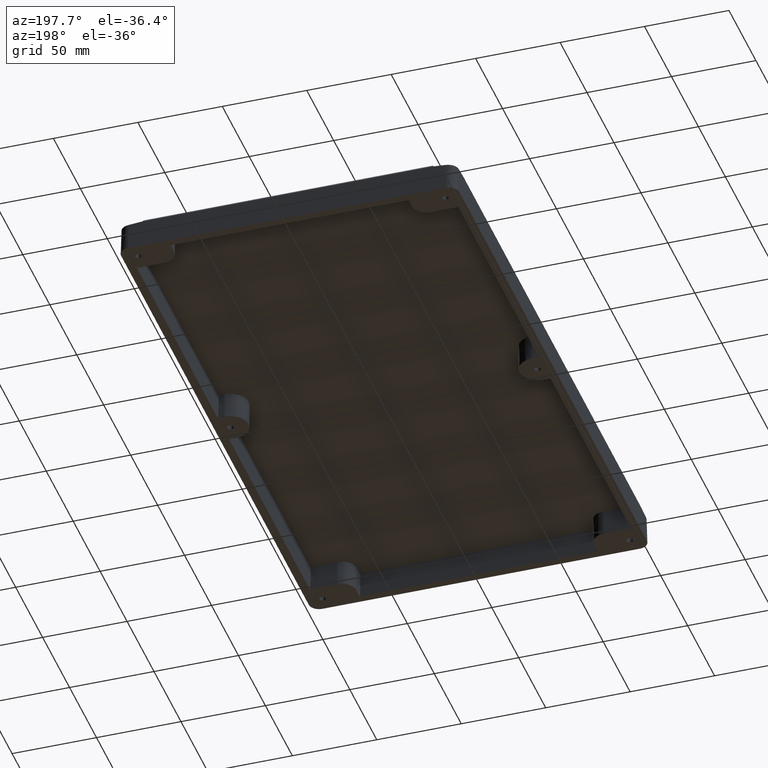
[diagram: clean part render]
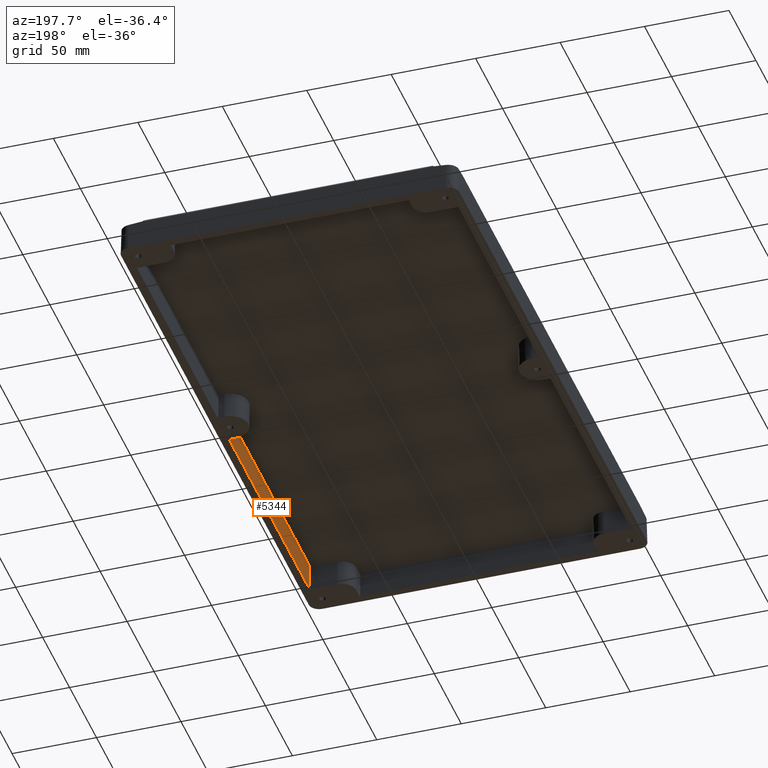
[diagram: same view with one face highlighted and labeled with its STEP entity id]
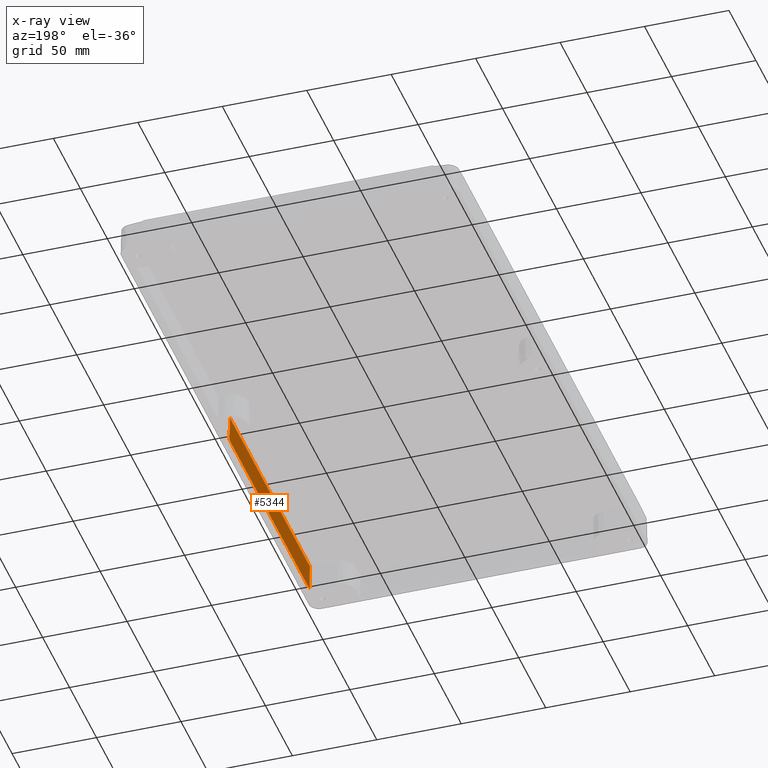
[diagram: x-ray of the same camera — body ghosted, the highlighted face saturated]
A machine part, auxiliary view. The second image highlights one B-rep face of the part: STEP entity #5344.
The next image is the same camera in x-ray: the body ghosted, the highlighted face saturated — about 0% of this face is hidden behind the body in this view.
In plain terms, the highlighted planar face has unit normal (0.9998, -0, 0.0175).
Its self-contained STEP definition (entity closure, byte-faithful):
#345 = VERTEX_POINT ( 'NONE', #6217 ) ;
#606 = CARTESIAN_POINT ( 'NONE',  ( 95.10508987014355900, -11.20483397743463900, 0.0000000000000000000 ) ) ;
#905 = LINE ( 'NONE', #1540, #4964 ) ;
#1021 = VECTOR ( 'NONE', #1147, 1000.000000000000200 ) ;
#1105 = EDGE_CURVE ( 'NONE', #345, #5139, #3326, .T. ) ;
#1147 = DIRECTION ( 'NONE',  ( -0.01744974916068272100, 0.01744974916068272500, 0.9996954598818874600 ) ) ;
#1229 = AXIS2_PLACEMENT_3D ( 'NONE', #3247, #4872, #1679 ) ;
#1540 = CARTESIAN_POINT ( 'NONE',  ( 95.10524209382850800, -11.20468175374969100, -0.008720889070033087700 ) ) ;
#1679 = DIRECTION ( 'NONE',  ( 0.01745240643728354600, 0.0000000000000000000, -0.9998476951563911600 ) ) ;
#1855 = EDGE_CURVE ( 'NONE', #5139, #2576, #4152, .T. ) ;
#2084 = DIRECTION ( 'NONE',  ( 0.01744974916068272100, 0.01744974916068271800, -0.9996954598818874600 ) ) ;
#2341 = ORIENTED_EDGE ( 'NONE', *, *, #1105, .T. ) ;
#2576 = VERTEX_POINT ( 'NONE', #2695 ) ;
#2630 = ORIENTED_EDGE ( 'NONE', *, *, #4691, .F. ) ;
#2695 = CARTESIAN_POINT ( 'NONE',  ( 94.83453636375617200, -11.47538748382201300, 15.50000000000000200 ) ) ;
#2731 = ORIENTED_EDGE ( 'NONE', *, *, #4204, .T. ) ;
#3097 = EDGE_LOOP ( 'NONE', ( #5246, #2731, #2630, #2341 ) ) ;
#3238 = CARTESIAN_POINT ( 'NONE',  ( 94.83468858744112100, -159.6247647398629100, 15.49127911092997100 ) ) ;
#3247 = CARTESIAN_POINT ( 'NONE',  ( 95.13999999999998600, -160.4299999999999800, -2.000000000000000000 ) ) ;
#3287 = VECTOR ( 'NONE', #5691, 1000.000000000000000 ) ;
#3326 = LINE ( 'NONE', #3238, #1021 ) ;
#3456 = LINE ( 'NONE', #6737, #3287 ) ;
#4036 = FACE_OUTER_BOUND ( 'NONE', #3097, .T. ) ;
#4152 = LINE ( 'NONE', #6066, #6831 ) ;
#4204 = EDGE_CURVE ( 'NONE', #2576, #4894, #905, .T. ) ;
#4682 = CARTESIAN_POINT ( 'NONE',  ( 94.83453636375617200, -159.6246125161779600, 15.50000000000000200 ) ) ;
#4691 = EDGE_CURVE ( 'NONE', #345, #4894, #3456, .T. ) ;
#4872 = DIRECTION ( 'NONE',  ( 0.9998476951563912700, -0.0000000000000000000, 0.01745240643728355000 ) ) ;
#4894 = VERTEX_POINT ( 'NONE', #606 ) ;
#4964 = VECTOR ( 'NONE', #2084, 1000.000000000000100 ) ;
#5139 = VERTEX_POINT ( 'NONE', #4682 ) ;
#5246 = ORIENTED_EDGE ( 'NONE', *, *, #1855, .T. ) ;
#5344 = ADVANCED_FACE ( 'NONE', ( #4036 ), #5384, .F. ) ;
#5384 = PLANE ( 'NONE',  #1229 ) ;
#5525 = DIRECTION ( 'NONE',  ( 0.0000000000000000000, 1.000000000000000000, -0.0000000000000000000 ) ) ;
#5691 = DIRECTION ( 'NONE',  ( -0.0000000000000000000, 1.000000000000000000, -0.0000000000000000000 ) ) ;
#6066 = CARTESIAN_POINT ( 'NONE',  ( 94.83453636375617200, -160.4299999999999800, 15.50000000000000200 ) ) ;
#6217 = CARTESIAN_POINT ( 'NONE',  ( 95.10508987014355900, -159.8951660225653500, 0.0000000000000000000 ) ) ;
#6737 = CARTESIAN_POINT ( 'NONE',  ( 95.10508987014355900, 0.0000000000000000000, 0.0000000000000000000 ) ) ;
#6831 = VECTOR ( 'NONE', #5525, 1000.000000000000000 ) ;